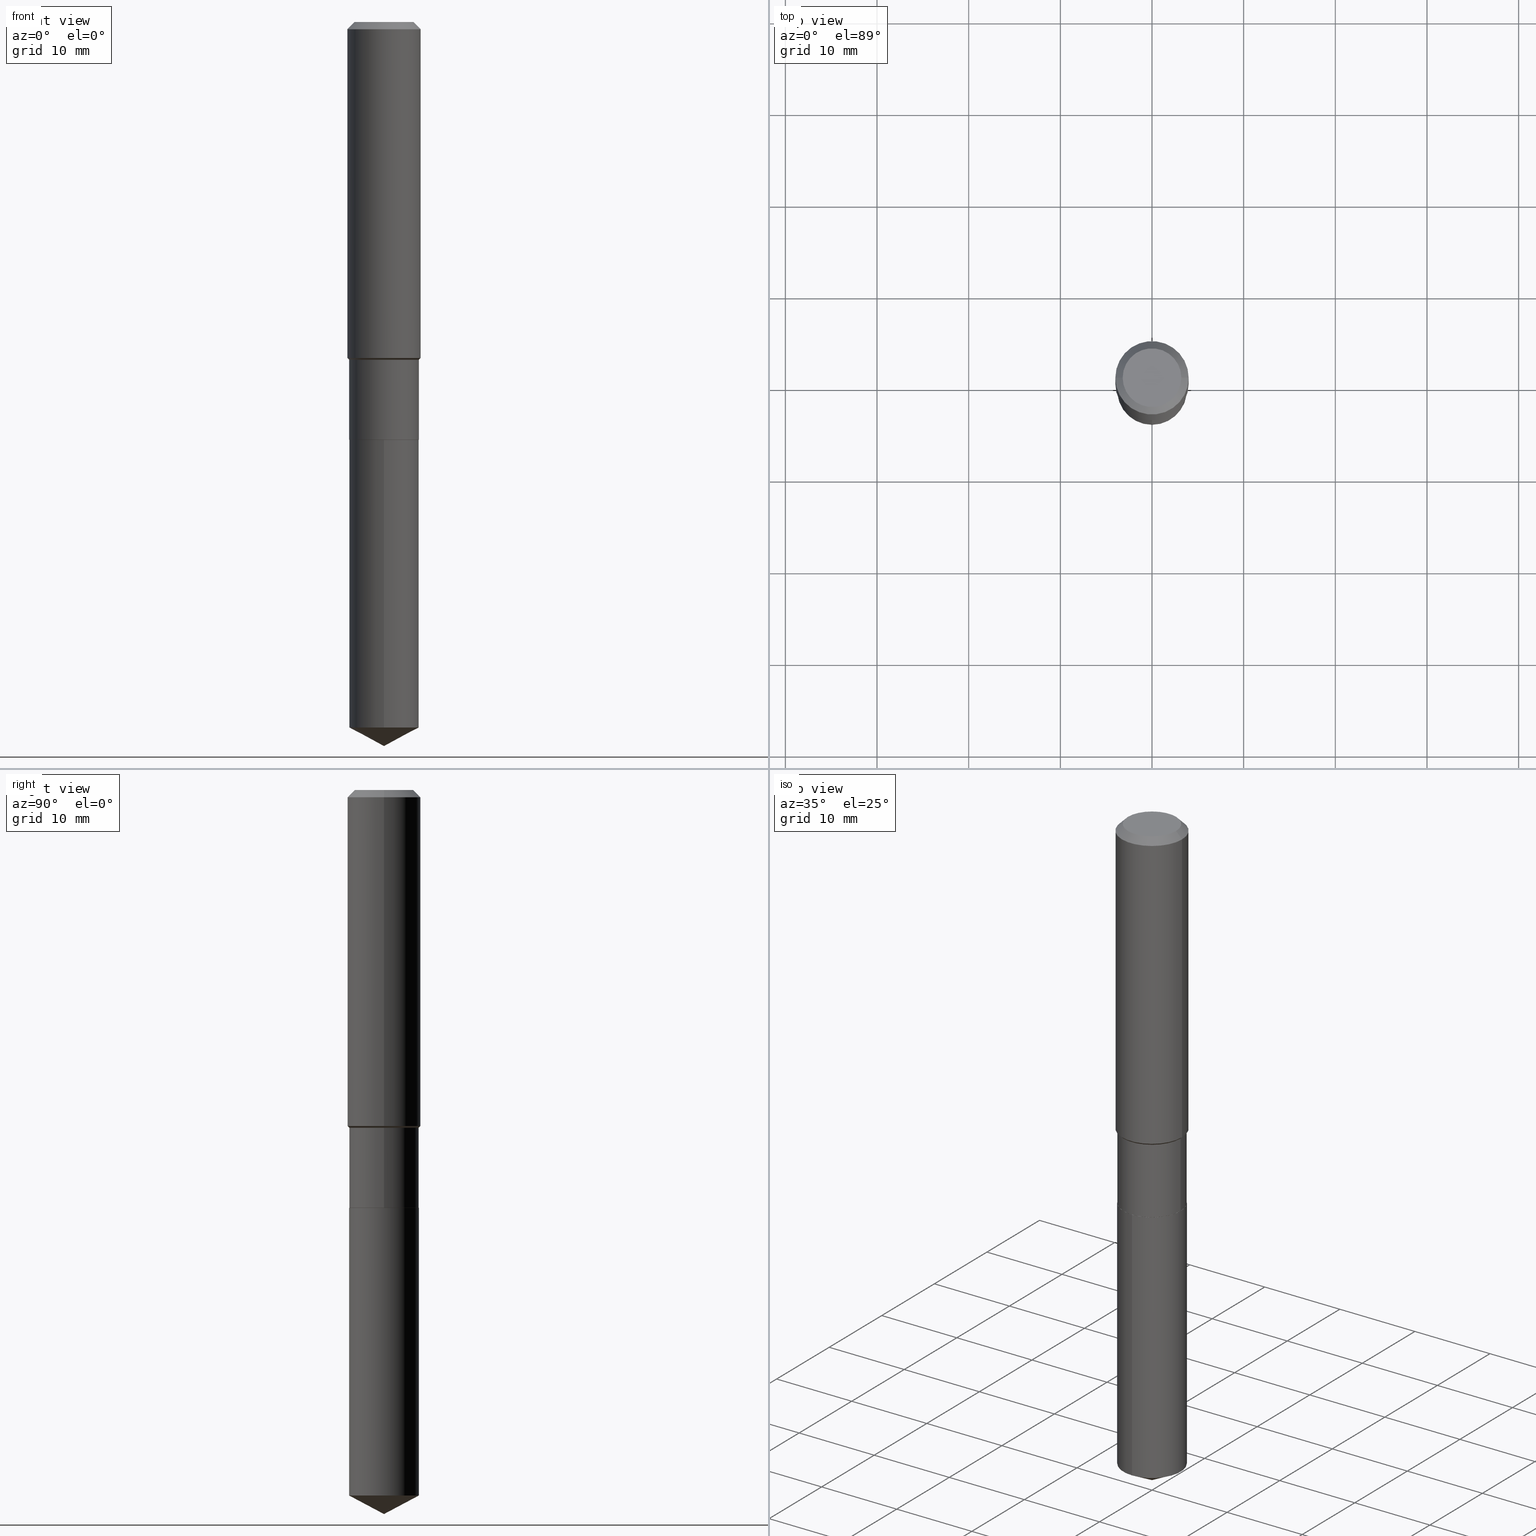
[diagram: canonical four-view strip — front | top / right | iso, engineering-drawing reading convention]
A machine part, canonical four-view strip (front | top / right | iso — engineering-drawing reading convention). The complete STEP part file that produces these views, byte-faithful:
ISO-10303-21;
HEADER;
FILE_DESCRIPTION (( 'STEP AP203' ),
    '1' );
FILE_NAME ('67646.STEP',
    '2024-04-25T08:13:15',
    ( '' ),
    ( '' ),
    'SwSTEP 2.0',
    'SolidWorks 2023',
    '' );
FILE_SCHEMA (( 'CONFIG_CONTROL_DESIGN' ));
ENDSEC;

DATA;
#1 = APPLICATION_CONTEXT ( 'configuration controlled 3d designs of mechanical parts and assemblies' ) ;
#2 = FACE_OUTER_BOUND ( 'NONE', #450, .T. ) ;
#3 = DIRECTION ( 'NONE',  ( -6.982962677686265922E-15, -1.000000000000000000, 3.652203200085913145E-15 ) ) ;
#4 = ORIENTED_EDGE ( 'NONE', *, *, #257, .T. ) ;
#5 = EDGE_CURVE ( 'NONE', #279, #297, #446, .T. ) ;
#6 = APPROVAL_DATE_TIME ( #388, #231 ) ;
#7 = CARTESIAN_POINT ( 'NONE',  ( 0.000000000000000000, 0.000000000000000000, 0.000000000000000000 ) ) ;
#8 = DIRECTION ( 'NONE',  ( 2.445563419251064334E-29, -3.491345847547695498E-15, -1.000000000000000000 ) ) ;
#9 = CARTESIAN_POINT ( 'NONE',  ( 1.062971932697184107E-15, 0.1495999999999894636, -3.030656269023443983 ) ) ;
#10 = DATE_TIME_ROLE ( 'classification_date' ) ;
#11 = DIRECTION ( 'NONE',  ( -2.445468806185136597E-29, 3.491481338843145583E-15, 1.000000000000000000 ) ) ;
#12 = VECTOR ( 'NONE', #465, 39.37007874015748143 ) ;
#13 = CARTESIAN_POINT ( 'NONE',  ( 0.1575000000000000011, -1.190510096822576026E-15, -0.03150000000000019451 ) ) ;
#14 = ORIENTED_EDGE ( 'NONE', *, *, #286, .F. ) ;
#15 = DIRECTION ( 'NONE',  ( -2.438088387897960049E-29, 3.491481338843145188E-15, 1.000000000000000000 ) ) ;
#16 = LINE ( 'NONE', #47, #201 ) ;
#17 = EDGE_LOOP ( 'NONE', ( #300, #227, #67, #293 ) ) ;
#18 = DIRECTION ( 'NONE',  ( 1.000000000000000000, -6.982962677686265922E-15, 0.000000000000000000 ) ) ;
#19 = CARTESIAN_POINT ( 'NONE',  ( 3.548619784655251556E-29, -5.066488570795288817E-15, -1.451100000000000056 ) ) ;
#20 = EDGE_CURVE ( 'NONE', #60, #314, #161, .T. ) ;
#21 = CIRCLE ( 'NONE', #412, 0.1496000000000000107 ) ;
#22 = CYLINDRICAL_SURFACE ( 'NONE', #143, 0.1496000000000000107 ) ;
#23 = EDGE_CURVE ( 'NONE', #291, #404, #345, .T. ) ;
#24 = PRODUCT_DEFINITION_SHAPE ( 'NONE', 'NONE',  #485 ) ;
#25 = LINE ( 'NONE', #64, #308 ) ;
#26 = CARTESIAN_POINT ( 'NONE',  ( 4.390105600863557446E-29, -6.267907299491214904E-15, -1.795200000000000129 ) ) ;
#27 =( GEOMETRIC_REPRESENTATION_CONTEXT ( 3 ) GLOBAL_UNCERTAINTY_ASSIGNED_CONTEXT ( ( #209 ) ) GLOBAL_UNIT_ASSIGNED_CONTEXT ( ( #448, #407, #54 ) ) REPRESENTATION_CONTEXT ( 'NONE', 'WORKASPACE' ) );
#28 = CONICAL_SURFACE ( 'NONE', #187, 0.1491000000000000103, 0.7853981633978239785 ) ;
#29 = ORIENTED_EDGE ( 'NONE', *, *, #23, .F. ) ;
#30 = ORIENTED_EDGE ( 'NONE', *, *, #327, .F. ) ;
#31 = LOCAL_TIME ( 4, 13, 15.00000000000000000, #490 ) ;
#32 = CIRCLE ( 'NONE', #368, 0.1491000000000000103 ) ;
#33 = CC_DESIGN_APPROVAL ( #243, ( #485 ) ) ;
#34 = DIMENSIONAL_EXPONENTS ( 1.000000000000000000, 0.000000000000000000, 0.000000000000000000, 0.000000000000000000, 0.000000000000000000, 0.000000000000000000, 0.000000000000000000 ) ;
#35 = VERTEX_POINT ( 'NONE', #89 ) ;
#36 = VERTEX_POINT ( 'NONE', #9 ) ;
#37 = ADVANCED_FACE ( 'NONE', ( #156 ), #28, .T. ) ;
#38 = SECURITY_CLASSIFICATION_LEVEL ( 'unclassified' ) ;
#39 = EDGE_LOOP ( 'NONE', ( #108, #204, #484, #44 ) ) ;
#40 = APPROVAL_ROLE ( '' ) ;
#41 = CYLINDRICAL_SURFACE ( 'NONE', #59, 0.1495999999999999830 ) ;
#42 = DIRECTION ( 'NONE',  ( -2.445563419251064334E-29, 3.491345847547695893E-15, 1.000000000000000000 ) ) ;
#43 = CC_DESIGN_PERSON_AND_ORGANIZATION_ASSIGNMENT ( #417, #196, ( #110 ) ) ;
#44 = ORIENTED_EDGE ( 'NONE', *, *, #473, .F. ) ;
#45 = PERSON_AND_ORGANIZATION_ROLE ( 'creator' ) ;
#46 = CARTESIAN_POINT ( 'NONE',  ( 4.390105600863556886E-29, -6.267907299491213327E-15, -1.795199999999999685 ) ) ;
#47 = CARTESIAN_POINT ( 'NONE',  ( -1.044651216581821425E-15, -0.1496000000000062835, -1.795199999999999463 ) ) ;
#48 = ORIENTED_EDGE ( 'NONE', *, *, #206, .F. ) ;
#49 = APPROVAL_ROLE ( '' ) ;
#50 = DIRECTION ( 'NONE',  ( 1.000000000000000000, -6.982962677686265133E-15, 0.000000000000000000 ) ) ;
#51 = CARTESIAN_POINT ( 'NONE',  ( 4.390105600863557446E-29, -6.267907299491214904E-15, -1.795200000000000129 ) ) ;
#52 = ADVANCED_FACE ( 'NONE', ( #356 ), #452, .T. ) ;
#53 = EDGE_LOOP ( 'NONE', ( #256, #30, #425, #469 ) ) ;
#54 =( NAMED_UNIT ( * ) SI_UNIT ( $, .STERADIAN. ) SOLID_ANGLE_UNIT ( ) );
#55 = AXIS2_PLACEMENT_3D ( 'NONE', #46, #75, #456 ) ;
#56 = CC_DESIGN_DATE_AND_TIME_ASSIGNMENT ( #233, #262, ( #485 ) ) ;
#57 = FACE_OUTER_BOUND ( 'NONE', #177, .T. ) ;
#58 = CARTESIAN_POINT ( 'NONE',  ( 7.411492258471693368E-29, -1.058131241417298379E-14, -3.030656269023443539 ) ) ;
#59 = AXIS2_PLACEMENT_3D ( 'NONE', #185, #225, #280 ) ;
#60 = VERTEX_POINT ( 'NONE', #95 ) ;
#61 = DIRECTION ( 'NONE',  ( 1.000000000000000000, -6.982962677686265133E-15, 0.000000000000000000 ) ) ;
#62 = LINE ( 'NONE', #133, #228 ) ;
#63 = DIRECTION ( 'NONE',  ( -2.445468806185136877E-29, 3.491481338843145188E-15, 1.000000000000000000 ) ) ;
#64 = CARTESIAN_POINT ( 'NONE',  ( -0.1495999999999999830, 1.062971932697109757E-15, -7.358726895021338760E-30 ) ) ;
#65 = DIRECTION ( 'NONE',  ( -6.982962677686265922E-15, -1.000000000000000000, 3.652203200085913145E-15 ) ) ;
#66 = CARTESIAN_POINT ( 'NONE',  ( 0.000000000000000000, 0.000000000000000000, 0.000000000000000000 ) ) ;
#67 = ORIENTED_EDGE ( 'NONE', *, *, #23, .T. ) ;
#68 = EDGE_CURVE ( 'NONE', #214, #36, #246, .T. ) ;
#69 = AXIS2_PLACEMENT_3D ( 'NONE', #433, #94, #245 ) ;
#70 = CC_DESIGN_PERSON_AND_ORGANIZATION_ASSIGNMENT ( #229, #45, ( #135 ) ) ;
#71 = DIRECTION ( 'NONE',  ( -2.445468806185136597E-29, 3.491481338843145583E-15, 1.000000000000000000 ) ) ;
#72 = ORIENTED_EDGE ( 'NONE', *, *, #343, .T. ) ;
#73 = EDGE_LOOP ( 'NONE', ( #216, #125, #87, #416 ) ) ;
#74 = APPROVAL_STATUS ( 'not_yet_approved' ) ;
#75 = DIRECTION ( 'NONE',  ( -2.445468806185136597E-29, 3.491481338843145583E-15, 1.000000000000000000 ) ) ;
#76 = CARTESIAN_POINT ( 'NONE',  ( 0.1496000000000000107, -7.310812775403659002E-15, -1.794700000000000184 ) ) ;
#77 = DIRECTION ( 'NONE',  ( 0.7071067811865467956, -2.468850131082249172E-15, 0.7071067811865482389 ) ) ;
#78 = APPROVAL_DATE_TIME ( #384, #243 ) ;
#79 = FACE_OUTER_BOUND ( 'NONE', #195, .T. ) ;
#80 = VECTOR ( 'NONE', #77, 39.37007874015748143 ) ;
#81 = FACE_OUTER_BOUND ( 'NONE', #261, .T. ) ;
#82 = EDGE_LOOP ( 'NONE', ( #339, #181, #363, #383 ) ) ;
#83 = PERSON_AND_ORGANIZATION_ROLE ( 'creator' ) ;
#84 = EDGE_CURVE ( 'NONE', #404, #292, #62, .T. ) ;
#85 = FACE_OUTER_BOUND ( 'NONE', #53, .T. ) ;
#86 = DIRECTION ( 'NONE',  ( -6.982962677686265922E-15, -1.000000000000000000, 3.652203200085913145E-15 ) ) ;
#87 = ORIENTED_EDGE ( 'NONE', *, *, #289, .T. ) ;
#88 = DIRECTION ( 'NONE',  ( 1.000000000000000000, -6.982962677686262766E-15, 0.000000000000000000 ) ) ;
#89 = CARTESIAN_POINT ( 'NONE',  ( -0.1575000000000000011, -1.455338956373834684E-15, -0.03150000000000019451 ) ) ;
#90 = ADVANCED_FACE ( 'NONE', ( #357 ), #208, .T. ) ;
#91 = AXIS2_PLACEMENT_3D ( 'NONE', #351, #153, #312 ) ;
#92 = CARTESIAN_POINT ( 'NONE',  ( 3.548619784655251556E-29, -5.066488570795288817E-15, -1.451100000000000056 ) ) ;
#93 = AXIS2_PLACEMENT_3D ( 'NONE', #51, #340, #3 ) ;
#94 = DIRECTION ( 'NONE',  ( -2.445468806185136597E-29, 3.491481338843145583E-15, 1.000000000000000000 ) ) ;
#95 = CARTESIAN_POINT ( 'NONE',  ( -0.1495999999999999830, -4.603353132111431549E-15, -1.451100000000000056 ) ) ;
#96 = DIRECTION ( 'NONE',  ( -2.445563419251064334E-29, 3.491345847547695893E-15, 1.000000000000000000 ) ) ;
#97 = CARTESIAN_POINT ( 'NONE',  ( -8.867600288278445810E-28, 1.265955338380582103E-13, 36.25987874015748247 ) ) ;
#98 = CC_DESIGN_APPROVAL ( #479, ( #110 ) ) ;
#99 = VECTOR ( 'NONE', #437, 39.37007874015748143 ) ;
#100 = AXIS2_PLACEMENT_3D ( 'NONE', #164, #470, #305 ) ;
#101 = VERTEX_POINT ( 'NONE', #358 ) ;
#102 = EDGE_CURVE ( 'NONE', #297, #60, #25, .T. ) ;
#103 = VECTOR ( 'NONE', #63, 39.37007874015748143 ) ;
#104 = VERTEX_POINT ( 'NONE', #396 ) ;
#105 = ADVANCED_FACE ( 'NONE', ( #166 ), #22, .T. ) ;
#106 = ORIENTED_EDGE ( 'NONE', *, *, #421, .T. ) ;
#107 = AXIS2_PLACEMENT_3D ( 'NONE', #144, #265, #274 ) ;
#108 = ORIENTED_EDGE ( 'NONE', *, *, #338, .F. ) ;
#109 = VECTOR ( 'NONE', #235, 39.37007874015748143 ) ;
#110 = SECURITY_CLASSIFICATION ( '', '', #38 ) ;
#111 = ORIENTED_EDGE ( 'NONE', *, *, #449, .F. ) ;
#112 = CALENDAR_DATE ( 2024, 25, 4 ) ;
#113 = LINE ( 'NONE', #365, #466 ) ;
#114 = CARTESIAN_POINT ( 'NONE',  ( 7.703226739483226971E-31, -1.099816621735597538E-16, -0.03150000000000019451 ) ) ;
#115 = ORIENTED_EDGE ( 'NONE', *, *, #127, .T. ) ;
#116 = DIRECTION ( 'NONE',  ( 1.000000000000000000, -6.982962677686267499E-15, 4.876176775795936353E-29 ) ) ;
#117 = DIRECTION ( 'NONE',  ( -2.445468806185136597E-29, 3.491481338843145583E-15, 1.000000000000000000 ) ) ;
#118 = ORIENTED_EDGE ( 'NONE', *, *, #294, .T. ) ;
#119 = APPLICATION_PROTOCOL_DEFINITION ( 'international standard', 'config_control_design', 1994, #1 ) ;
#120 = CARTESIAN_POINT ( 'NONE',  ( 4.390105600863556886E-29, -6.267907299491213327E-15, -1.795199999999999685 ) ) ;
#121 = AXIS2_PLACEMENT_3D ( 'NONE', #26, #398, #65 ) ;
#122 = DIRECTION ( 'NONE',  ( 1.000000000000000000, -6.982962677686262766E-15, 0.000000000000000000 ) ) ;
#123 = VERTEX_POINT ( 'NONE', #317 ) ;
#124 = FACE_OUTER_BOUND ( 'NONE', #39, .T. ) ;
#125 = ORIENTED_EDGE ( 'NONE', *, *, #172, .T. ) ;
#126 = FACE_OUTER_BOUND ( 'NONE', #328, .T. ) ;
#127 = EDGE_CURVE ( 'NONE', #291, #60, #254, .T. ) ;
#128 = LINE ( 'NONE', #13, #440 ) ;
#129 = DIRECTION ( 'NONE',  ( 1.000000000000000000, -6.982962677686266711E-15, 4.876176775795936353E-29 ) ) ;
#130 = CONICAL_SURFACE ( 'NONE', #391, 0.1495999999999999830, 0.7853981633974472798 ) ;
#131 = DIRECTION ( 'NONE',  ( -6.982962677686267499E-15, -1.000000000000000000, 3.541896320645549825E-15 ) ) ;
#132 = FACE_OUTER_BOUND ( 'NONE', #73, .T. ) ;
#133 = CARTESIAN_POINT ( 'NONE',  ( 0.1575000000000000844, -1.099816621735587677E-15, 7.679978421878603638E-30 ) ) ;
#134 = ADVANCED_FACE ( 'NONE', ( #475 ), #158, .T. ) ;
#135 = PRODUCT_DEFINITION_FORMATION_WITH_SPECIFIED_SOURCE ( 'ANY', '', #344, .NOT_KNOWN. ) ;
#136 = CLOSED_SHELL ( 'NONE', ( #105, #134, #52, #334, #263 ) ) ;
#137 = LOCAL_TIME ( 4, 13, 15.00000000000000000, #380 ) ;
#138 = VECTOR ( 'NONE', #167, 39.37007874015748854 ) ;
#139 = ORIENTED_EDGE ( 'NONE', *, *, #329, .F. ) ;
#140 = CYLINDRICAL_SURFACE ( 'NONE', #369, 0.1575000000000000844 ) ;
#141 = ORIENTED_EDGE ( 'NONE', *, *, #327, .T. ) ;
#142 = ORIENTED_EDGE ( 'NONE', *, *, #68, .T. ) ;
#143 = AXIS2_PLACEMENT_3D ( 'NONE', #324, #170, #435 ) ;
#144 = CARTESIAN_POINT ( 'NONE',  ( 0.000000000000000000, 0.000000000000000000, 0.000000000000000000 ) ) ;
#145 = DIRECTION ( 'NONE',  ( -2.445468806185136597E-29, 3.491481338843145583E-15, 1.000000000000000000 ) ) ;
#146 = ORIENTED_EDGE ( 'NONE', *, *, #84, .T. ) ;
#147 = DATE_AND_TIME ( #311, #439 ) ;
#148 = CARTESIAN_POINT ( 'NONE',  ( 0.1575000000000001676, -6.138722489954014174E-15, -1.443199999999999816 ) ) ;
#149 = DIRECTION ( 'NONE',  ( -2.445563419251064334E-29, 3.491345847547695893E-15, 1.000000000000000000 ) ) ;
#150 = EDGE_CURVE ( 'NONE', #123, #241, #378, .T. ) ;
#151 = ORIENTED_EDGE ( 'NONE', *, *, #5, .F. ) ;
#152 = PERSON_AND_ORGANIZATION_ROLE ( 'design_supplier' ) ;
#153 = DIRECTION ( 'NONE',  ( -2.445468806185136597E-29, 3.491481338843145583E-15, 1.000000000000000000 ) ) ;
#154 = LINE ( 'NONE', #307, #12 ) ;
#155 = CONICAL_SURFACE ( 'NONE', #55, 0.1491000000000000103, 0.7853981633978239785 ) ;
#156 = FACE_OUTER_BOUND ( 'NONE', #341, .T. ) ;
#157 = APPROVAL_ROLE ( '' ) ;
#158 = CONICAL_SURFACE ( 'NONE', #272, 74.04434902938376695, 1.082104136236487824 ) ;
#159 = AXIS2_PLACEMENT_3D ( 'NONE', #430, #316, #88 ) ;
#160 = CARTESIAN_POINT ( 'NONE',  ( 3.548619784655251556E-29, -5.066488570795288817E-15, -1.451100000000000056 ) ) ;
#161 = LINE ( 'NONE', #186, #259 ) ;
#162 = APPROVAL_STATUS ( 'not_yet_approved' ) ;
#163 = EDGE_CURVE ( 'NONE', #279, #291, #247, .T. ) ;
#164 = CARTESIAN_POINT ( 'NONE',  ( 7.703226739483226971E-31, -1.099816621735597538E-16, -0.03150000000000019451 ) ) ;
#165 = CARTESIAN_POINT ( 'NONE',  ( 0.1495999999999999830, -6.111139787377153629E-15, -1.451100000000000056 ) ) ;
#166 = FACE_OUTER_BOUND ( 'NONE', #489, .T. ) ;
#167 = DIRECTION ( 'NONE',  ( -6.165590087286839185E-15, -0.8829475928589269884, 0.4694715627858908058 ) ) ;
#168 = DIRECTION ( 'NONE',  ( 1.000000000000000000, -6.982962677686262766E-15, 0.000000000000000000 ) ) ;
#169 = AXIS2_PLACEMENT_3D ( 'NONE', #97, #96, #131 ) ;
#170 = DIRECTION ( 'NONE',  ( -2.445563419251064334E-29, 3.491345847547695893E-15, 1.000000000000000000 ) ) ;
#171 = DIRECTION ( 'NONE',  ( -2.445468806185136597E-29, 3.491481338843145583E-15, 1.000000000000000000 ) ) ;
#172 = EDGE_CURVE ( 'NONE', #36, #101, #21, .T. ) ;
#173 = DIRECTION ( 'NONE',  ( -2.445468806185136877E-29, 3.491481338843145188E-15, 1.000000000000000000 ) ) ;
#174 = CONICAL_SURFACE ( 'NONE', #159, 0.1495999999999999830, 0.7853981633974472798 ) ;
#175 = CIRCLE ( 'NONE', #93, 0.1496000000000000107 ) ;
#176 = EDGE_CURVE ( 'NONE', #35, #292, #434, .T. ) ;
#177 = EDGE_LOOP ( 'NONE', ( #445, #106, #151, #303 ) ) ;
#178 = ORIENTED_EDGE ( 'NONE', *, *, #68, .F. ) ;
#179 = CIRCLE ( 'NONE', #250, 0.1496000000000000107 ) ;
#180 = CIRCLE ( 'NONE', #441, 0.1495999999999999830 ) ;
#181 = ORIENTED_EDGE ( 'NONE', *, *, #444, .T. ) ;
#182 = CC_DESIGN_PERSON_AND_ORGANIZATION_ASSIGNMENT ( #422, #237, ( #344 ) ) ;
#183 = VERTEX_POINT ( 'NONE', #190 ) ;
#184 = PERSON_AND_ORGANIZATION ( #221, #240 ) ;
#185 = CARTESIAN_POINT ( 'NONE',  ( 0.000000000000000000, 0.000000000000000000, 0.000000000000000000 ) ) ;
#186 = CARTESIAN_POINT ( 'NONE',  ( -0.1495999999999999830, -4.003516638098179257E-15, -1.451100000000000056 ) ) ;
#187 = AXIS2_PLACEMENT_3D ( 'NONE', #467, #207, #399 ) ;
#188 = SHAPE_DEFINITION_REPRESENTATION ( #24, #408 ) ;
#189 = DIRECTION ( 'NONE',  ( 1.000000000000000000, -6.982962677686265922E-15, 4.876176775795935793E-29 ) ) ;
#190 = CARTESIAN_POINT ( 'NONE',  ( 0.1260000000000000009, -1.027466422270894443E-15, 3.860086710919128072E-18 ) ) ;
#191 = ORIENTED_EDGE ( 'NONE', *, *, #192, .T. ) ;
#192 = EDGE_CURVE ( 'NONE', #241, #123, #175, .T. ) ;
#193 = CARTESIAN_POINT ( 'NONE',  ( -0.1491000000000000103, -5.205838853298793464E-15, -1.795199999999999685 ) ) ;
#194 = DIRECTION ( 'NONE',  ( -2.445563419251064334E-29, 3.491345847547695498E-15, 1.000000000000000000 ) ) ;
#195 = EDGE_LOOP ( 'NONE', ( #111, #14 ) ) ;
#196 = PERSON_AND_ORGANIZATION_ROLE ( 'classification_officer' ) ;
#197 = CARTESIAN_POINT ( 'NONE',  ( -0.1491000000000000103, -5.208488080472903876E-15, -1.795199999999999685 ) ) ;
#198 = DIRECTION ( 'NONE',  ( 6.982962677686265922E-15, 1.000000000000000000, -3.491345847547695498E-15 ) ) ;
#199 = CARTESIAN_POINT ( 'NONE',  ( 4.388882866460465205E-29, -6.266161558821793401E-15, -1.794700000000000184 ) ) ;
#200 = CALENDAR_DATE ( 2024, 25, 4 ) ;
#201 = VECTOR ( 'NONE', #194, 39.37007874015748143 ) ;
#202 = AXIS2_PLACEMENT_3D ( 'NONE', #266, #418, #389 ) ;
#203 = CARTESIAN_POINT ( 'NONE',  ( -9.439721640706201686E-47, 1.347742071746726764E-32, 3.860086710912459732E-18 ) ) ;
#204 = ORIENTED_EDGE ( 'NONE', *, *, #288, .T. ) ;
#205 = DIRECTION ( 'NONE',  ( -6.982962677686265922E-15, -1.000000000000000000, 3.652203200085913145E-15 ) ) ;
#206 = EDGE_CURVE ( 'NONE', #214, #101, #355, .T. ) ;
#207 = DIRECTION ( 'NONE',  ( -2.445468806185136597E-29, 3.491481338843145583E-15, 1.000000000000000000 ) ) ;
#208 = CYLINDRICAL_SURFACE ( 'NONE', #474, 0.1495999999999999830 ) ;
#209 = UNCERTAINTY_MEASURE_WITH_UNIT (LENGTH_MEASURE( 1.000000000000000082E-05 ), #448, 'distance_accuracy_value', 'NONE');
#210 = AXIS2_PLACEMENT_3D ( 'NONE', #199, #462, #349 ) ;
#211 = DIRECTION ( 'NONE',  ( -6.982962677686265922E-15, -1.000000000000000000, 3.652203200085913145E-15 ) ) ;
#212 = ADVANCED_FACE ( 'NONE', ( #81 ), #130, .T. ) ;
#213 = AXIS2_PLACEMENT_3D ( 'NONE', #419, #271, #226 ) ;
#214 = VERTEX_POINT ( 'NONE', #428 ) ;
#215 = DIRECTION ( 'NONE',  ( 1.000000000000000000, -6.982962677686267499E-15, 4.876176775795936353E-29 ) ) ;
#216 = ORIENTED_EDGE ( 'NONE', *, *, #257, .F. ) ;
#217 =( LENGTH_UNIT ( ) NAMED_UNIT ( * ) SI_UNIT ( $, .METRE. ) );
#218 = CC_DESIGN_SECURITY_CLASSIFICATION ( #110, ( #135 ) ) ;
#219 = ORIENTED_EDGE ( 'NONE', *, *, #338, .T. ) ;
#220 = PERSON_AND_ORGANIZATION ( #221, #240 ) ;
#221 = PERSON ( 'UNSPECIFIED', 'UNSPECIFIED', 'UNSPECIFIED', ('UNSPECIFIED'), ('UNSPECIFIED'), ('UNSPECIFIED') ) ;
#222 = ORIENTED_EDGE ( 'NONE', *, *, #444, .F. ) ;
#223 = ADVANCED_FACE ( 'NONE', ( #124 ), #325, .T. ) ;
#224 = COORDINATED_UNIVERSAL_TIME_OFFSET ( 5, 0, .BEHIND. ) ;
#225 = DIRECTION ( 'NONE',  ( -2.445468806185136597E-29, 3.491481338843145583E-15, 1.000000000000000000 ) ) ;
#226 = DIRECTION ( 'NONE',  ( -1.000000000000000000, 6.982962677686265922E-15, 0.000000000000000000 ) ) ;
#227 = ORIENTED_EDGE ( 'NONE', *, *, #457, .T. ) ;
#228 = VECTOR ( 'NONE', #173, 39.37007874015748143 ) ;
#229 = PERSON_AND_ORGANIZATION ( #221, #240 ) ;
#230 = LINE ( 'NONE', #395, #109 ) ;
#231 = APPROVAL ( #415, 'UNSPECIFIED' ) ;
#232 = ORIENTED_EDGE ( 'NONE', *, *, #102, .T. ) ;
#233 = DATE_AND_TIME ( #459, #137 ) ;
#234 = LINE ( 'NONE', #197, #310 ) ;
#235 = DIRECTION ( 'NONE',  ( -2.445563419251064334E-29, 3.491345847547695498E-15, 1.000000000000000000 ) ) ;
#236 = ORIENTED_EDGE ( 'NONE', *, *, #289, .F. ) ;
#237 = PERSON_AND_ORGANIZATION_ROLE ( 'design_owner' ) ;
#238 = PLANE ( 'NONE',  #202 ) ;
#239 = DIRECTION ( 'NONE',  ( -2.445468806185136597E-29, 3.491481338843145583E-15, 1.000000000000000000 ) ) ;
#240 = ORGANIZATION ( 'UNSPECIFIED', 'UNSPECIFIED', '' ) ;
#241 = VERTEX_POINT ( 'NONE', #424 ) ;
#242 = CLOSED_SHELL ( 'NONE', ( #370, #223, #483, #212, #381, #90, #318, #366, #438, #354, #360, #37 ) ) ;
#243 = APPROVAL ( #162, 'UNSPECIFIED' ) ;
#244 = DIRECTION ( 'NONE',  ( 1.000000000000000000, -6.982962677686262766E-15, 0.000000000000000000 ) ) ;
#245 = DIRECTION ( 'NONE',  ( 1.000000000000000000, -6.982962677686265922E-15, 0.000000000000000000 ) ) ;
#246 = LINE ( 'NONE', #478, #99 ) ;
#247 = LINE ( 'NONE', #397, #103 ) ;
#248 = EDGE_CURVE ( 'NONE', #404, #314, #400, .T. ) ;
#249 = CARTESIAN_POINT ( 'NONE',  ( 4.390105600863557446E-29, -6.267907299491214904E-15, -1.795200000000000129 ) ) ;
#250 = AXIS2_PLACEMENT_3D ( 'NONE', #58, #42, #86 ) ;
#251 = LOCAL_TIME ( 4, 13, 15.00000000000000000, #269 ) ;
#252 = EDGE_CURVE ( 'NONE', #101, #36, #179, .T. ) ;
#253 = ORIENTED_EDGE ( 'NONE', *, *, #206, .T. ) ;
#254 = CIRCLE ( 'NONE', #337, 0.1495999999999999830 ) ;
#255 = DESIGN_CONTEXT ( 'detailed design', #1, 'design' ) ;
#256 = ORIENTED_EDGE ( 'NONE', *, *, #288, .F. ) ;
#257 = EDGE_CURVE ( 'NONE', #36, #123, #230, .T. ) ;
#258 = AXIS2_PLACEMENT_3D ( 'NONE', #7, #145, #116 ) ;
#259 = VECTOR ( 'NONE', #420, 39.37007874015748143 ) ;
#260 = CC_DESIGN_APPROVAL ( #231, ( #135 ) ) ;
#261 = EDGE_LOOP ( 'NONE', ( #115, #332, #454, #29 ) ) ;
#262 = DATE_TIME_ROLE ( 'creation_date' ) ;
#263 = ADVANCED_FACE ( 'NONE', ( #348 ), #386, .F. ) ;
#264 = ORIENTED_EDGE ( 'NONE', *, *, #163, .F. ) ;
#265 = DIRECTION ( 'NONE',  ( 0.000000000000000000, 0.000000000000000000, 1.000000000000000000 ) ) ;
#266 = CARTESIAN_POINT ( 'NONE',  ( -4.719860820353100843E-47, 6.738710358733633822E-33, 1.930043355456229866E-18 ) ) ;
#267 = DIRECTION ( 'NONE',  ( -2.445468806185136597E-29, 3.491481338843145583E-15, 1.000000000000000000 ) ) ;
#268 = ORIENTED_EDGE ( 'NONE', *, *, #252, .T. ) ;
#269 = COORDINATED_UNIVERSAL_TIME_OFFSET ( 5, 0, .BEHIND. ) ;
#270 = DIRECTION ( 'NONE',  ( 1.000000000000000000, -6.982962677686268288E-15, 0.000000000000000000 ) ) ;
#271 = DIRECTION ( 'NONE',  ( 2.445468806185136597E-29, -3.491481338843145583E-15, -1.000000000000000000 ) ) ;
#272 = AXIS2_PLACEMENT_3D ( 'NONE', #284, #477, #285 ) ;
#273 = ORIENTED_EDGE ( 'NONE', *, *, #84, .F. ) ;
#274 = DIRECTION ( 'NONE',  ( 1.000000000000000000, 0.000000000000000000, 0.000000000000000000 ) ) ;
#275 = CYLINDRICAL_SURFACE ( 'NONE', #258, 0.1575000000000000844 ) ;
#276 = FACE_OUTER_BOUND ( 'NONE', #17, .T. ) ;
#277 = EDGE_LOOP ( 'NONE', ( #191, #364 ) ) ;
#278 = DIRECTION ( 'NONE',  ( -2.445468806185136597E-29, 3.491481338843145583E-15, 1.000000000000000000 ) ) ;
#279 = VERTEX_POINT ( 'NONE', #76 ) ;
#280 = DIRECTION ( 'NONE',  ( 1.000000000000000000, -6.982962677686266711E-15, 4.876176775795936353E-29 ) ) ;
#281 = DIRECTION ( 'NONE',  ( 1.000000000000000000, -6.982962677686265922E-15, 4.876281427513067258E-29 ) ) ;
#282 = VECTOR ( 'NONE', #460, 39.37007874015748143 ) ;
#283 = DIRECTION ( 'NONE',  ( -2.445468806185136597E-29, 3.491481338843145583E-15, 1.000000000000000000 ) ) ;
#284 = CARTESIAN_POINT ( 'NONE',  ( -8.867600288278445810E-28, 1.265955338380582103E-13, 36.25987874015748247 ) ) ;
#285 = DIRECTION ( 'NONE',  ( -6.982962677686267499E-15, -1.000000000000000000, 3.541896320645549825E-15 ) ) ;
#286 = EDGE_CURVE ( 'NONE', #406, #104, #32, .T. ) ;
#287 = CIRCLE ( 'NONE', #91, 0.1575000000000001676 ) ;
#288 = EDGE_CURVE ( 'NONE', #183, #292, #128, .T. ) ;
#289 = EDGE_CURVE ( 'NONE', #101, #241, #16, .T. ) ;
#290 = DIRECTION ( 'NONE',  ( 0.7071067811868130271, -2.468850131085038979E-15, 0.7071067811862817853 ) ) ;
#291 = VERTEX_POINT ( 'NONE', #165 ) ;
#292 = VERTEX_POINT ( 'NONE', #342 ) ;
#293 = ORIENTED_EDGE ( 'NONE', *, *, #343, .F. ) ;
#294 = EDGE_CURVE ( 'NONE', #314, #35, #154, .T. ) ;
#295 = CIRCLE ( 'NONE', #393, 0.1260000000000000009 ) ;
#296 = AXIS2_PLACEMENT_3D ( 'NONE', #249, #436, #211 ) ;
#297 = VERTEX_POINT ( 'NONE', #390 ) ;
#298 = PERSON_AND_ORGANIZATION ( #221, #240 ) ;
#299 = DIRECTION ( 'NONE',  ( -0.7071067811868130271, 7.493145998871311837E-15, 0.7071067811862817853 ) ) ;
#300 = ORIENTED_EDGE ( 'NONE', *, *, #20, .F. ) ;
#301 = CARTESIAN_POINT ( 'NONE',  ( -0.1260000000000000009, 9.348441284752484904E-16, 3.860086710906114178E-18 ) ) ;
#302 = CARTESIAN_POINT ( 'NONE',  ( 7.605851647802754251E-29, -1.085927032299002677E-14, -3.110199999999999854 ) ) ;
#303 = ORIENTED_EDGE ( 'NONE', *, *, #476, .F. ) ;
#304 = CALENDAR_DATE ( 2024, 25, 4 ) ;
#305 = DIRECTION ( 'NONE',  ( -1.000000000000000000, 6.982962677686265922E-15, 0.000000000000000000 ) ) ;
#306 = CONICAL_SURFACE ( 'NONE', #100, 0.1575000000000000011, 0.7853981633974450594 ) ;
#307 = CARTESIAN_POINT ( 'NONE',  ( -0.1575000000000000844, 1.119104808822158392E-15, -7.747322767151481189E-30 ) ) ;
#308 = VECTOR ( 'NONE', #472, 39.37007874015748143 ) ;
#309 = EDGE_LOOP ( 'NONE', ( #374, #232, #333, #264 ) ) ;
#310 = VECTOR ( 'NONE', #299, 39.37007874015748854 ) ;
#311 = CALENDAR_DATE ( 2024, 25, 4 ) ;
#312 = DIRECTION ( 'NONE',  ( 1.000000000000000000, -6.982962677686267499E-15, 0.000000000000000000 ) ) ;
#313 = DIRECTION ( 'NONE',  ( 1.000000000000000000, -6.982962677686267499E-15, 0.000000000000000000 ) ) ;
#314 = VERTEX_POINT ( 'NONE', #471 ) ;
#315 = APPLICATION_PROTOCOL_DEFINITION ( 'international standard', 'config_control_design', 1994, #320 ) ;
#316 = DIRECTION ( 'NONE',  ( -2.445468806185136597E-29, 3.491481338843145583E-15, 1.000000000000000000 ) ) ;
#317 = CARTESIAN_POINT ( 'NONE',  ( 1.062971932697184107E-15, 0.1495999999999937380, -1.795200000000000573 ) ) ;
#318 = ADVANCED_FACE ( 'NONE', ( #276 ), #174, .T. ) ;
#319 = CARTESIAN_POINT ( 'NONE',  ( 3.529300581086388319E-29, -5.038905868218426694E-15, -1.443199999999999816 ) ) ;
#320 = APPLICATION_CONTEXT ( 'configuration controlled 3d designs of mechanical parts and assemblies' ) ;
#321 = CARTESIAN_POINT ( 'NONE',  ( 0.000000000000000000, 0.000000000000000000, 0.000000000000000000 ) ) ;
#322 = DIRECTION ( 'NONE',  ( -2.445468806185136597E-29, 3.491481338843145583E-15, 1.000000000000000000 ) ) ;
#323 = CC_DESIGN_PERSON_AND_ORGANIZATION_ASSIGNMENT ( #426, #83, ( #485 ) ) ;
#324 = CARTESIAN_POINT ( 'NONE',  ( 4.390105600863557446E-29, -6.267907299491214904E-15, -1.795200000000000129 ) ) ;
#325 = CONICAL_SURFACE ( 'NONE', #213, 0.1575000000000000011, 0.7853981633974450594 ) ;
#326 = CIRCLE ( 'NONE', #481, 0.1496000000000000107 ) ;
#327 = EDGE_CURVE ( 'NONE', #447, #183, #480, .T. ) ;
#328 = EDGE_LOOP ( 'NONE', ( #141, #219 ) ) ;
#329 = EDGE_CURVE ( 'NONE', #292, #35, #331, .T. ) ;
#330 = AXIS2_PLACEMENT_3D ( 'NONE', #114, #278, #18 ) ;
#331 = CIRCLE ( 'NONE', #69, 0.1575000000000000011 ) ;
#332 = ORIENTED_EDGE ( 'NONE', *, *, #20, .T. ) ;
#333 = ORIENTED_EDGE ( 'NONE', *, *, #127, .F. ) ;
#334 = ADVANCED_FACE ( 'NONE', ( #132 ), #359, .T. ) ;
#335 = ORIENTED_EDGE ( 'NONE', *, *, #286, .T. ) ;
#336 = LINE ( 'NONE', #487, #282 ) ;
#337 = AXIS2_PLACEMENT_3D ( 'NONE', #19, #322, #168 ) ;
#338 = EDGE_CURVE ( 'NONE', #183, #447, #295, .T. ) ;
#339 = ORIENTED_EDGE ( 'NONE', *, *, #102, .F. ) ;
#340 = DIRECTION ( 'NONE',  ( -2.445563419251064334E-29, 3.491345847547695893E-15, 1.000000000000000000 ) ) ;
#341 = EDGE_LOOP ( 'NONE', ( #486, #335, #409, #222 ) ) ;
#342 = CARTESIAN_POINT ( 'NONE',  ( 0.1575000000000000011, -1.209798283909146741E-15, -0.03150000000000019451 ) ) ;
#343 = EDGE_CURVE ( 'NONE', #314, #404, #287, .T. ) ;
#344 = PRODUCT ( '67646', '67646', '', ( #373 ) ) ;
#345 = LINE ( 'NONE', #431, #80 ) ;
#346 = DATE_AND_TIME ( #200, #31 ) ;
#347 = APPROVAL_PERSON_ORGANIZATION ( #298, #231, #49 ) ;
#348 = FACE_OUTER_BOUND ( 'NONE', #277, .T. ) ;
#349 = DIRECTION ( 'NONE',  ( 1.000000000000000000, -6.982962677686268288E-15, 0.000000000000000000 ) ) ;
#350 = APPROVAL_PERSON_ORGANIZATION ( #463, #243, #40 ) ;
#351 = CARTESIAN_POINT ( 'NONE',  ( 3.529300581086388319E-29, -5.038905868218426694E-15, -1.443199999999999816 ) ) ;
#352 = CARTESIAN_POINT ( 'NONE',  ( 4.390105600863556886E-29, -6.267907299491213327E-15, -1.795199999999999685 ) ) ;
#353 = ORIENTED_EDGE ( 'NONE', *, *, #172, .F. ) ;
#354 = ADVANCED_FACE ( 'NONE', ( #126 ), #238, .F. ) ;
#355 = LINE ( 'NONE', #302, #138 ) ;
#356 = FACE_OUTER_BOUND ( 'NONE', #482, .T. ) ;
#357 = FACE_OUTER_BOUND ( 'NONE', #82, .T. ) ;
#358 = CARTESIAN_POINT ( 'NONE',  ( -1.044651216581791645E-15, -0.1496000000000106134, -3.030656269023443095 ) ) ;
#359 = CYLINDRICAL_SURFACE ( 'NONE', #121, 0.1496000000000000107 ) ;
#360 = ADVANCED_FACE ( 'NONE', ( #79 ), #376, .F. ) ;
#361 = CC_DESIGN_DATE_AND_TIME_ASSIGNMENT ( #346, #10, ( #110 ) ) ;
#362 = CIRCLE ( 'NONE', #453, 0.1491000000000000103 ) ;
#363 = ORIENTED_EDGE ( 'NONE', *, *, #163, .T. ) ;
#364 = ORIENTED_EDGE ( 'NONE', *, *, #150, .T. ) ;
#365 = CARTESIAN_POINT ( 'NONE',  ( 0.1491000000000000103, -7.309067034734236709E-15, -1.795199999999999685 ) ) ;
#366 = ADVANCED_FACE ( 'NONE', ( #2 ), #275, .T. ) ;
#367 = APPROVAL_PERSON_ORGANIZATION ( #184, #479, #157 ) ;
#368 = AXIS2_PLACEMENT_3D ( 'NONE', #352, #267, #61 ) ;
#369 = AXIS2_PLACEMENT_3D ( 'NONE', #66, #71, #215 ) ;
#370 = ADVANCED_FACE ( 'NONE', ( #57 ), #155, .T. ) ;
#371 = ORIENTED_EDGE ( 'NONE', *, *, #192, .F. ) ;
#372 = LENGTH_MEASURE_WITH_UNIT ( LENGTH_MEASURE( 0.02539999999999999897 ), #217 );
#373 = MECHANICAL_CONTEXT ( 'NONE', #320, 'mechanical' ) ;
#374 = ORIENTED_EDGE ( 'NONE', *, *, #5, .T. ) ;
#375 = APPROVAL_DATE_TIME ( #147, #479 ) ;
#376 = PLANE ( 'NONE',  #401 ) ;
#377 = DIRECTION ( 'NONE',  ( -2.445468806185136597E-29, 3.491481338843145583E-15, 1.000000000000000000 ) ) ;
#378 = CIRCLE ( 'NONE', #296, 0.1496000000000000107 ) ;
#379 = EDGE_LOOP ( 'NONE', ( #414, #118, #139, #273 ) ) ;
#380 = COORDINATED_UNIVERSAL_TIME_OFFSET ( 5, 0, .BEHIND. ) ;
#381 = ADVANCED_FACE ( 'NONE', ( #427 ), #41, .T. ) ;
#382 = CARTESIAN_POINT ( 'NONE',  ( 4.390105600863557446E-29, -6.267907299491214904E-15, -1.795200000000000129 ) ) ;
#383 = ORIENTED_EDGE ( 'NONE', *, *, #457, .F. ) ;
#384 = DATE_AND_TIME ( #304, #251 ) ;
#385 = DIRECTION ( 'NONE',  ( -2.445468806185136597E-29, 3.491481338843145583E-15, 1.000000000000000000 ) ) ;
#386 = PLANE ( 'NONE',  #488 ) ;
#387 = EDGE_LOOP ( 'NONE', ( #48, #142, #429 ) ) ;
#388 = DATE_AND_TIME ( #112, #413 ) ;
#389 = DIRECTION ( 'NONE',  ( -1.000000000000000000, 6.982962677686265922E-15, -4.876176775795935793E-29 ) ) ;
#390 = CARTESIAN_POINT ( 'NONE',  ( -0.1496000000000000107, -4.603353132111431549E-15, -1.794700000000000184 ) ) ;
#391 = AXIS2_PLACEMENT_3D ( 'NONE', #160, #117, #122 ) ;
#392 = ORIENTED_EDGE ( 'NONE', *, *, #176, .F. ) ;
#393 = AXIS2_PLACEMENT_3D ( 'NONE', #443, #171, #394 ) ;
#394 = DIRECTION ( 'NONE',  ( 1.000000000000000000, -6.982962677686265922E-15, 4.876281427513067258E-29 ) ) ;
#395 = CARTESIAN_POINT ( 'NONE',  ( 1.062971932697153736E-15, 0.1495999999999937380, -1.795200000000000573 ) ) ;
#396 = CARTESIAN_POINT ( 'NONE',  ( 0.1491000000000000103, -7.309067034734236709E-15, -1.795199999999999685 ) ) ;
#397 = CARTESIAN_POINT ( 'NONE',  ( 0.1495999999999999830, -1.044651216581865404E-15, 7.294760456590720327E-30 ) ) ;
#398 = DIRECTION ( 'NONE',  ( -2.445563419251064334E-29, 3.491345847547695893E-15, 1.000000000000000000 ) ) ;
#399 = DIRECTION ( 'NONE',  ( 1.000000000000000000, -6.982962677686265133E-15, 0.000000000000000000 ) ) ;
#400 = CIRCLE ( 'NONE', #405, 0.1575000000000001676 ) ;
#401 = AXIS2_PLACEMENT_3D ( 'NONE', #423, #15, #189 ) ;
#402 = CC_DESIGN_PERSON_AND_ORGANIZATION_ASSIGNMENT ( #220, #152, ( #135 ) ) ;
#403 = MANIFOLD_SOLID_BREP ( 'Body-Move/Copy2[1]', #136 ) ;
#404 = VERTEX_POINT ( 'NONE', #148 ) ;
#405 = AXIS2_PLACEMENT_3D ( 'NONE', #319, #377, #313 ) ;
#406 = VERTEX_POINT ( 'NONE', #193 ) ;
#407 =( NAMED_UNIT ( * ) PLANE_ANGLE_UNIT ( ) SI_UNIT ( $, .RADIAN. ) );
#408 = ADVANCED_BREP_SHAPE_REPRESENTATION ( '67646', ( #403, #411, #107 ), #27 ) ;
#409 = ORIENTED_EDGE ( 'NONE', *, *, #476, .T. ) ;
#410 = FACE_OUTER_BOUND ( 'NONE', #379, .T. ) ;
#411 = MANIFOLD_SOLID_BREP ( 'Body-Move/Copy2[2]', #242 ) ;
#412 = AXIS2_PLACEMENT_3D ( 'NONE', #461, #149, #205 ) ;
#413 = LOCAL_TIME ( 4, 13, 15.00000000000000000, #455 ) ;
#414 = ORIENTED_EDGE ( 'NONE', *, *, #248, .T. ) ;
#415 = APPROVAL_STATUS ( 'not_yet_approved' ) ;
#416 = ORIENTED_EDGE ( 'NONE', *, *, #150, .F. ) ;
#417 = PERSON_AND_ORGANIZATION ( #221, #240 ) ;
#418 = DIRECTION ( 'NONE',  ( 2.438088387897960049E-29, -3.491481338843145188E-15, -1.000000000000000000 ) ) ;
#419 = CARTESIAN_POINT ( 'NONE',  ( 7.703226739483226971E-31, -1.099816621735597538E-16, -0.03150000000000019451 ) ) ;
#420 = DIRECTION ( 'NONE',  ( -0.7071067811865467956, 7.493145998870351005E-15, 0.7071067811865482389 ) ) ;
#421 = EDGE_CURVE ( 'NONE', #406, #297, #234, .T. ) ;
#422 = PERSON_AND_ORGANIZATION ( #221, #240 ) ;
#423 = CARTESIAN_POINT ( 'NONE',  ( 6.686949327300660051E-29, -2.978696355006919031E-15, -1.795200000000000129 ) ) ;
#424 = CARTESIAN_POINT ( 'NONE',  ( -1.044651216581821425E-15, -0.1496000000000062835, -1.795199999999999463 ) ) ;
#425 = ORIENTED_EDGE ( 'NONE', *, *, #473, .T. ) ;
#426 = PERSON_AND_ORGANIZATION ( #221, #240 ) ;
#427 = FACE_OUTER_BOUND ( 'NONE', #309, .T. ) ;
#428 = CARTESIAN_POINT ( 'NONE',  ( 7.606191346554660718E-29, -1.085878385504284245E-14, -3.110199999999999854 ) ) ;
#429 = ORIENTED_EDGE ( 'NONE', *, *, #252, .F. ) ;
#430 = CARTESIAN_POINT ( 'NONE',  ( 3.548619784655251556E-29, -5.066488570795288817E-15, -1.451100000000000056 ) ) ;
#431 = CARTESIAN_POINT ( 'NONE',  ( 0.1495999999999999830, -6.111139787377153629E-15, -1.451100000000000056 ) ) ;
#432 = DIRECTION ( 'NONE',  ( -2.445468806185136597E-29, 3.491481338843145583E-15, 1.000000000000000000 ) ) ;
#433 = CARTESIAN_POINT ( 'NONE',  ( 7.703226739483226971E-31, -1.099816621735597538E-16, -0.03150000000000019451 ) ) ;
#434 = CIRCLE ( 'NONE', #330, 0.1575000000000000011 ) ;
#435 = DIRECTION ( 'NONE',  ( -6.982962677686265922E-15, -1.000000000000000000, 3.652203200085913145E-15 ) ) ;
#436 = DIRECTION ( 'NONE',  ( -2.445563419251064334E-29, 3.491345847547695893E-15, 1.000000000000000000 ) ) ;
#437 = DIRECTION ( 'NONE',  ( 6.273719981627770021E-15, 0.8829475928589302081, 0.4694715627858845886 ) ) ;
#438 = ADVANCED_FACE ( 'NONE', ( #85 ), #306, .T. ) ;
#439 = LOCAL_TIME ( 4, 13, 15.00000000000000000, #224 ) ;
#440 = VECTOR ( 'NONE', #468, 39.37007874015748143 ) ;
#441 = AXIS2_PLACEMENT_3D ( 'NONE', #92, #11, #244 ) ;
#442 = PRODUCT_RELATED_PRODUCT_CATEGORY ( 'detail', '', ( #344 ) ) ;
#443 = CARTESIAN_POINT ( 'NONE',  ( -9.439721640706201686E-47, 1.347742071746726764E-32, 3.860086710912459732E-18 ) ) ;
#444 = EDGE_CURVE ( 'NONE', #297, #279, #326, .T. ) ;
#445 = ORIENTED_EDGE ( 'NONE', *, *, #449, .T. ) ;
#446 = CIRCLE ( 'NONE', #210, 0.1496000000000000107 ) ;
#447 = VERTEX_POINT ( 'NONE', #301 ) ;
#448 =( CONVERSION_BASED_UNIT ( 'INCH', #372 ) LENGTH_UNIT ( ) NAMED_UNIT ( #34 ) );
#449 = EDGE_CURVE ( 'NONE', #104, #406, #362, .T. ) ;
#450 = EDGE_LOOP ( 'NONE', ( #458, #72, #146, #392 ) ) ;
#451 = AXIS2_PLACEMENT_3D ( 'NONE', #203, #239, #281 ) ;
#452 = CONICAL_SURFACE ( 'NONE', #169, 74.04434902938376695, 1.082104136236487824 ) ;
#453 = AXIS2_PLACEMENT_3D ( 'NONE', #120, #385, #50 ) ;
#454 = ORIENTED_EDGE ( 'NONE', *, *, #248, .F. ) ;
#455 = COORDINATED_UNIVERSAL_TIME_OFFSET ( 5, 0, .BEHIND. ) ;
#456 = DIRECTION ( 'NONE',  ( 1.000000000000000000, -6.982962677686265133E-15, 0.000000000000000000 ) ) ;
#457 = EDGE_CURVE ( 'NONE', #60, #291, #180, .T. ) ;
#458 = ORIENTED_EDGE ( 'NONE', *, *, #294, .F. ) ;
#459 = CALENDAR_DATE ( 2024, 25, 4 ) ;
#460 = DIRECTION ( 'NONE',  ( -0.7071067811865452413, 2.468850131082233000E-15, -0.7071067811865497932 ) ) ;
#461 = CARTESIAN_POINT ( 'NONE',  ( 7.411492258471693368E-29, -1.058131241417298379E-14, -3.030656269023443539 ) ) ;
#462 = DIRECTION ( 'NONE',  ( -2.445468806185136597E-29, 3.491481338843145583E-15, 1.000000000000000000 ) ) ;
#463 = PERSON_AND_ORGANIZATION ( #221, #240 ) ;
#464 = CARTESIAN_POINT ( 'NONE',  ( 4.388882866460465205E-29, -6.266161558821793401E-15, -1.794700000000000184 ) ) ;
#465 = DIRECTION ( 'NONE',  ( -2.445468806185136877E-29, 3.491481338843145188E-15, 1.000000000000000000 ) ) ;
#466 = VECTOR ( 'NONE', #290, 39.37007874015748854 ) ;
#467 = CARTESIAN_POINT ( 'NONE',  ( 4.390105600863556886E-29, -6.267907299491213327E-15, -1.795199999999999685 ) ) ;
#468 = DIRECTION ( 'NONE',  ( 0.7071067811865452413, -7.319954787623248157E-15, -0.7071067811865497932 ) ) ;
#469 = ORIENTED_EDGE ( 'NONE', *, *, #176, .T. ) ;
#470 = DIRECTION ( 'NONE',  ( 2.445468806185136597E-29, -3.491481338843145583E-15, -1.000000000000000000 ) ) ;
#471 = CARTESIAN_POINT ( 'NONE',  ( -0.1575000000000001676, -3.919801059396268302E-15, -1.443199999999999816 ) ) ;
#472 = DIRECTION ( 'NONE',  ( -2.445468806185136877E-29, 3.491481338843145188E-15, 1.000000000000000000 ) ) ;
#473 = EDGE_CURVE ( 'NONE', #447, #35, #336, .T. ) ;
#474 = AXIS2_PLACEMENT_3D ( 'NONE', #321, #283, #129 ) ;
#475 = FACE_OUTER_BOUND ( 'NONE', #387, .T. ) ;
#476 = EDGE_CURVE ( 'NONE', #104, #279, #113, .T. ) ;
#477 = DIRECTION ( 'NONE',  ( -2.445563419251064334E-29, 3.491345847547695893E-15, 1.000000000000000000 ) ) ;
#478 = CARTESIAN_POINT ( 'NONE',  ( 7.606194325311731777E-29, -1.085878385504284561E-14, -3.110199999999999854 ) ) ;
#479 = APPROVAL ( #74, 'UNSPECIFIED' ) ;
#480 = CIRCLE ( 'NONE', #451, 0.1260000000000000009 ) ;
#481 = AXIS2_PLACEMENT_3D ( 'NONE', #464, #432, #270 ) ;
#482 = EDGE_LOOP ( 'NONE', ( #178, #253, #353 ) ) ;
#483 = ADVANCED_FACE ( 'NONE', ( #410 ), #140, .T. ) ;
#484 = ORIENTED_EDGE ( 'NONE', *, *, #329, .T. ) ;
#485 = PRODUCT_DEFINITION ( 'UNKNOWN', '', #135, #255 ) ;
#486 = ORIENTED_EDGE ( 'NONE', *, *, #421, .F. ) ;
#487 = CARTESIAN_POINT ( 'NONE',  ( -0.1575000000000000011, 9.898349595620272334E-16, -0.03150000000000019451 ) ) ;
#488 = AXIS2_PLACEMENT_3D ( 'NONE', #382, #8, #198 ) ;
#489 = EDGE_LOOP ( 'NONE', ( #268, #4, #371, #236 ) ) ;
#490 = COORDINATED_UNIVERSAL_TIME_OFFSET ( 5, 0, .BEHIND. ) ;
ENDSEC;
END-ISO-10303-21;
